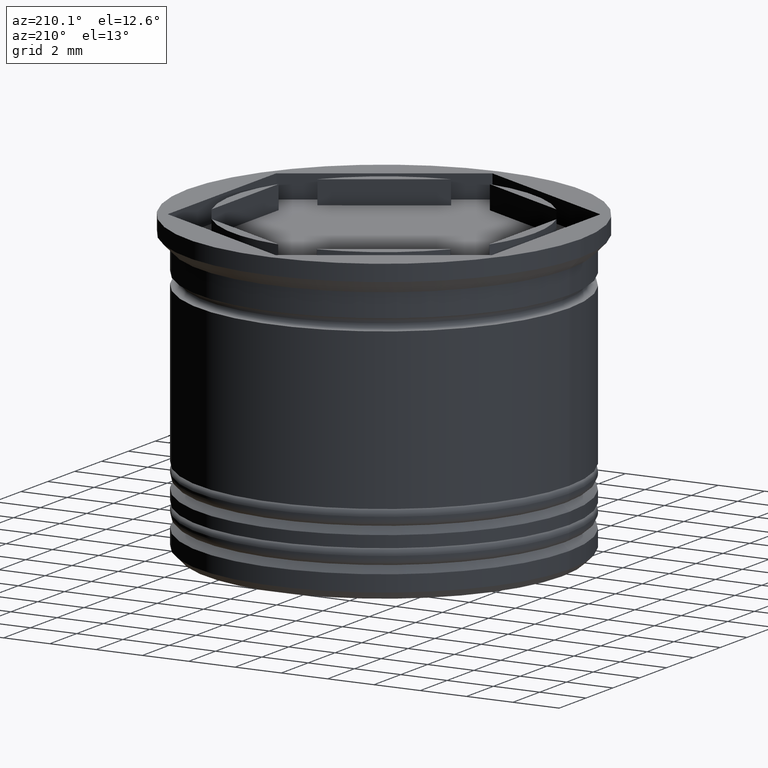
[diagram: clean part render]
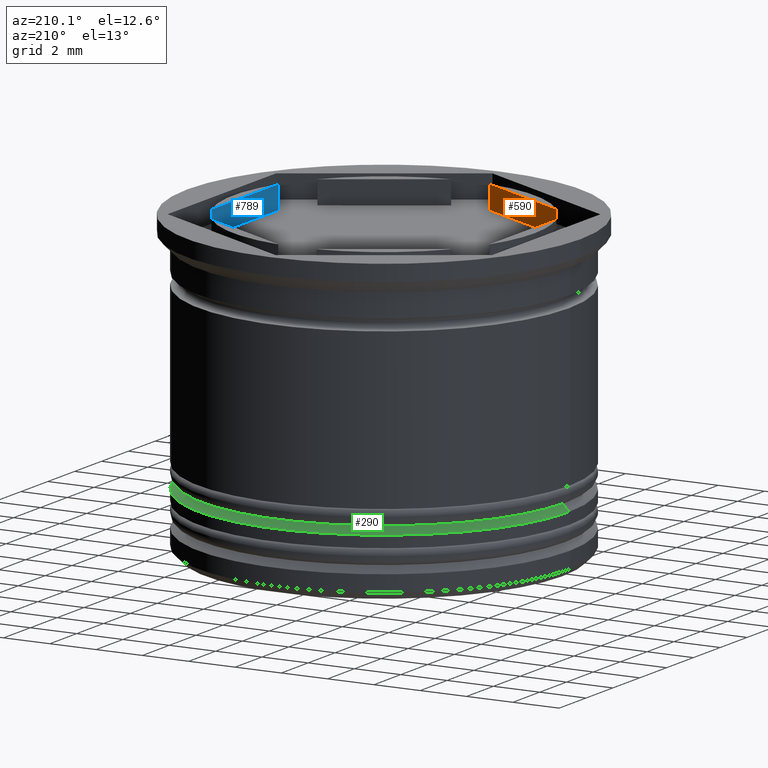
[diagram: same view with three faces highlighted in distinct colors, each labeled with its STEP entity id]
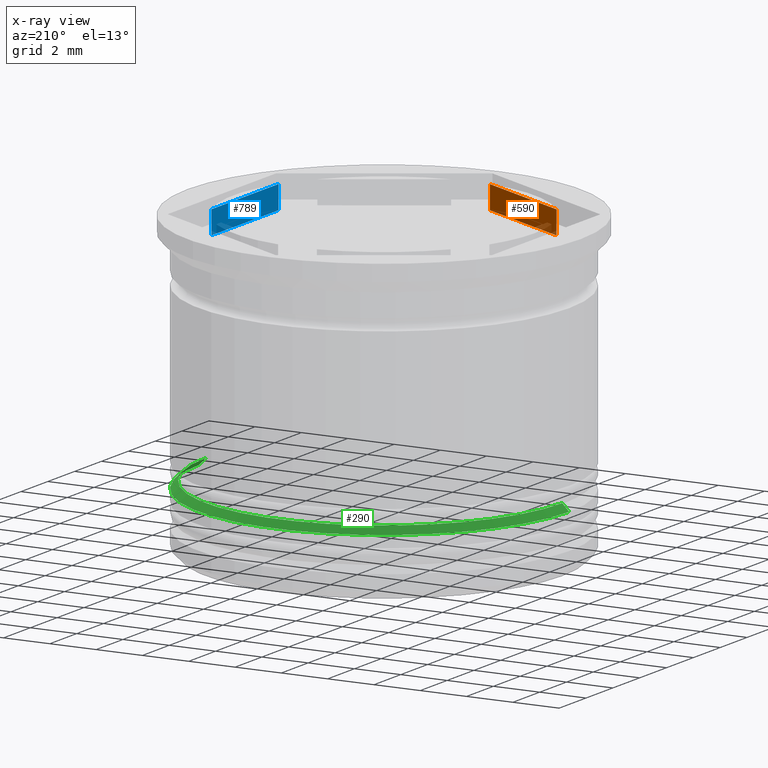
[diagram: x-ray of the same camera — body ghosted, the three highlighted faces saturated]
A machine part, auxiliary view with three faces highlighted in distinct colors.
The next image is the same camera in x-ray (body ghosted, the three faces saturated) — at least one of them is partly hidden behind the body in this view.
Their STEP definitions:

[orange] entity #590 — the highlighted planar face has unit normal (-0.5, -0.866, 0).
#32 = EDGE_CURVE ( 'NONE', #1372, #652, #624, .T. ) ;
#61 = CARTESIAN_POINT ( 'NONE',  ( -5.165063509461102598, -3.946152422706626250, 18.38477631085023134 ) ) ;
#201 = CARTESIAN_POINT ( 'NONE',  ( -6.000000000000000000, -3.464101615137753942, -19.33030277982335932 ) ) ;
#215 = EDGE_CURVE ( 'NONE', #907, #652, #688, .T. ) ;
#226 = CARTESIAN_POINT ( 'NONE',  ( -0.8349364905389008440, -6.446152422706632024, 0.000000000000000000 ) ) ;
#271 = VECTOR ( 'NONE', #1893, 1000.000000000000000 ) ;
#381 = DIRECTION ( 'NONE',  ( -0.000000000000000000, -0.000000000000000000, -1.000000000000000000 ) ) ;
#434 = CARTESIAN_POINT ( 'NONE',  ( -6.000000000000000000, -3.464101615137753942, -1.000000000000000888 ) ) ;
#473 = PLANE ( 'NONE',  #1424 ) ;
#537 = DIRECTION ( 'NONE',  ( 0.8660254037844387076, -0.4999999999999999445, 0.000000000000000000 ) ) ;
#590 = ADVANCED_FACE ( 'NONE', ( #1852 ), #473, .F. ) ;
#595 = LINE ( 'NONE', #434, #1853 ) ;
#624 = LINE ( 'NONE', #1267, #271 ) ;
#652 = VERTEX_POINT ( 'NONE', #226 ) ;
#684 = DIRECTION ( 'NONE',  ( -0.4999999999999999445, -0.8660254037844387076, 0.000000000000000000 ) ) ;
#688 = LINE ( 'NONE', #717, #693 ) ;
#693 = VECTOR ( 'NONE', #537, 999.9999999999998863 ) ;
#717 = CARTESIAN_POINT ( 'NONE',  ( -2.999999999999999112, -5.196152422706632024, 0.000000000000000000 ) ) ;
#740 = CARTESIAN_POINT ( 'NONE',  ( -5.165063509461099045, -3.946152422706631580, -1.000000000000000888 ) ) ;
#907 = VERTEX_POINT ( 'NONE', #1841 ) ;
#951 = DIRECTION ( 'NONE',  ( 0.8660254037844385966, -0.4999999999999998890, 0.000000000000000000 ) ) ;
#981 = ORIENTED_EDGE ( 'NONE', *, *, #32, .F. ) ;
#992 = EDGE_CURVE ( 'NONE', #907, #1340, #1772, .T. ) ;
#1135 = ORIENTED_EDGE ( 'NONE', *, *, #992, .F. ) ;
#1267 = CARTESIAN_POINT ( 'NONE',  ( -0.8349364905388942937, -6.446152422706633800, 18.38477631085023134 ) ) ;
#1284 = EDGE_CURVE ( 'NONE', #1372, #1340, #595, .T. ) ;
#1316 = DIRECTION ( 'NONE',  ( -0.8660254037844387076, 0.4999999999999999445, 0.000000000000000000 ) ) ;
#1340 = VERTEX_POINT ( 'NONE', #740 ) ;
#1372 = VERTEX_POINT ( 'NONE', #1485 ) ;
#1424 = AXIS2_PLACEMENT_3D ( 'NONE', #201, #684, #951 ) ;
#1485 = CARTESIAN_POINT ( 'NONE',  ( -0.8349364905389012881, -6.446152422706633800, -1.000000000000000888 ) ) ;
#1622 = EDGE_LOOP ( 'NONE', ( #1778, #981, #1860, #1135 ) ) ;
#1772 = LINE ( 'NONE', #61, #1829 ) ;
#1778 = ORIENTED_EDGE ( 'NONE', *, *, #215, .T. ) ;
#1829 = VECTOR ( 'NONE', #381, 1000.000000000000000 ) ;
#1841 = CARTESIAN_POINT ( 'NONE',  ( -5.165063509461098157, -3.946152422706629803, 0.000000000000000000 ) ) ;
#1852 = FACE_OUTER_BOUND ( 'NONE', #1622, .T. ) ;
#1853 = VECTOR ( 'NONE', #1316, 999.9999999999998863 ) ;
#1860 = ORIENTED_EDGE ( 'NONE', *, *, #1284, .T. ) ;
#1893 = DIRECTION ( 'NONE',  ( 0.000000000000000000, 0.000000000000000000, 1.000000000000000000 ) ) ;

[blue] entity #789 — the highlighted planar face has unit normal (1, -0, 0).
#119 = CARTESIAN_POINT ( 'NONE',  ( 5.999999999999999112, -2.500000000000003109, -1.000000000000000888 ) ) ;
#144 = ORIENTED_EDGE ( 'NONE', *, *, #1598, .F. ) ;
#167 = VERTEX_POINT ( 'NONE', #1784 ) ;
#217 = LINE ( 'NONE', #1245, #1365 ) ;
#229 = CARTESIAN_POINT ( 'NONE',  ( 6.000000000000000000, -1.502314598737158834E-15, 0.000000000000000000 ) ) ;
#236 = EDGE_CURVE ( 'NONE', #167, #1453, #677, .T. ) ;
#248 = CARTESIAN_POINT ( 'NONE',  ( 5.999999999999999112, -2.500000000000003109, 18.38477631085023134 ) ) ;
#296 = PLANE ( 'NONE',  #1198 ) ;
#317 = FACE_OUTER_BOUND ( 'NONE', #1690, .T. ) ;
#323 = CARTESIAN_POINT ( 'NONE',  ( 6.000000000000000888, 2.500000000000000444, 0.000000000000000000 ) ) ;
#397 = LINE ( 'NONE', #698, #573 ) ;
#401 = LINE ( 'NONE', #248, #969 ) ;
#573 = VECTOR ( 'NONE', #1458, 1000.000000000000000 ) ;
#665 = CARTESIAN_POINT ( 'NONE',  ( 6.000000000000000888, 2.500000000000000444, -1.000000000000000888 ) ) ;
#677 = LINE ( 'NONE', #229, #808 ) ;
#698 = CARTESIAN_POINT ( 'NONE',  ( 5.999999999999999112, -3.464101615137755719, -1.000000000000000888 ) ) ;
#756 = EDGE_CURVE ( 'NONE', #167, #1269, #401, .T. ) ;
#775 = CARTESIAN_POINT ( 'NONE',  ( 5.999999999999999112, -3.464101615137755719, -19.33030277982335932 ) ) ;
#789 = ADVANCED_FACE ( 'NONE', ( #317 ), #296, .F. ) ;
#808 = VECTOR ( 'NONE', #1929, 1000.000000000000000 ) ;
#860 = DIRECTION ( 'NONE',  ( -0.000000000000000000, -0.000000000000000000, -1.000000000000000000 ) ) ;
#924 = DIRECTION ( 'NONE',  ( 2.503857664561931390E-16, 1.000000000000000000, 0.000000000000000000 ) ) ;
#969 = VECTOR ( 'NONE', #860, 1000.000000000000000 ) ;
#1115 = ORIENTED_EDGE ( 'NONE', *, *, #756, .F. ) ;
#1198 = AXIS2_PLACEMENT_3D ( 'NONE', #775, #1216, #924 ) ;
#1216 = DIRECTION ( 'NONE',  ( 1.000000000000000000, -2.503857664561931390E-16, 0.000000000000000000 ) ) ;
#1245 = CARTESIAN_POINT ( 'NONE',  ( 6.000000000000000888, 2.500000000000000444, 18.38477631085023134 ) ) ;
#1269 = VERTEX_POINT ( 'NONE', #119 ) ;
#1365 = VECTOR ( 'NONE', #1589, 1000.000000000000000 ) ;
#1453 = VERTEX_POINT ( 'NONE', #323 ) ;
#1458 = DIRECTION ( 'NONE',  ( -2.503857664561931390E-16, -1.000000000000000000, 0.000000000000000000 ) ) ;
#1578 = ORIENTED_EDGE ( 'NONE', *, *, #236, .T. ) ;
#1589 = DIRECTION ( 'NONE',  ( 0.000000000000000000, 0.000000000000000000, 1.000000000000000000 ) ) ;
#1598 = EDGE_CURVE ( 'NONE', #1983, #1453, #217, .T. ) ;
#1690 = EDGE_LOOP ( 'NONE', ( #1578, #144, #1754, #1115 ) ) ;
#1754 = ORIENTED_EDGE ( 'NONE', *, *, #1866, .T. ) ;
#1784 = CARTESIAN_POINT ( 'NONE',  ( 5.999999999999999112, -2.500000000000003109, 0.000000000000000000 ) ) ;
#1866 = EDGE_CURVE ( 'NONE', #1983, #1269, #397, .T. ) ;
#1929 = DIRECTION ( 'NONE',  ( 2.503857664561931390E-16, 1.000000000000000000, 0.000000000000000000 ) ) ;
#1983 = VERTEX_POINT ( 'NONE', #665 ) ;

[green] entity #290 — the highlighted conical surface has half-angle 45 deg.
#3 = LINE ( 'NONE', #1548, #1725 ) ;
#24 = EDGE_CURVE ( 'NONE', #1229, #52, #3, .T. ) ;
#52 = VERTEX_POINT ( 'NONE', #1070 ) ;
#80 = DIRECTION ( 'NONE',  ( -1.000000000000000000, 0.000000000000000000, 0.000000000000000000 ) ) ;
#156 = DIRECTION ( 'NONE',  ( -0.7071067811865512365, 0.000000000000000000, -0.7071067811865439090 ) ) ;
#223 = VERTEX_POINT ( 'NONE', #1319 ) ;
#258 = FACE_OUTER_BOUND ( 'NONE', #792, .T. ) ;
#281 = EDGE_CURVE ( 'NONE', #52, #1452, #1357, .T. ) ;
#290 = ADVANCED_FACE ( 'NONE', ( #258 ), #1189, .T. ) ;
#305 = CIRCLE ( 'NONE', #534, 7.700000000000000178 ) ;
#496 = AXIS2_PLACEMENT_3D ( 'NONE', #1959, #1036, #869 ) ;
#534 = AXIS2_PLACEMENT_3D ( 'NONE', #1234, #1861, #640 ) ;
#639 = ORIENTED_EDGE ( 'NONE', *, *, #810, .F. ) ;
#640 = DIRECTION ( 'NONE',  ( -1.000000000000000000, 0.000000000000000000, 0.000000000000000000 ) ) ;
#729 = VECTOR ( 'NONE', #1845, 1000.000000000000000 ) ;
#734 = CARTESIAN_POINT ( 'NONE',  ( -7.700000000000000178, 9.429780353434619030E-16, -10.20000000000000817 ) ) ;
#792 = EDGE_LOOP ( 'NONE', ( #639, #1618, #1243, #1240 ) ) ;
#810 = EDGE_CURVE ( 'NONE', #223, #1229, #305, .T. ) ;
#869 = DIRECTION ( 'NONE',  ( -1.000000000000000000, 0.000000000000000000, 0.000000000000000000 ) ) ;
#1036 = DIRECTION ( 'NONE',  ( 0.000000000000000000, 0.000000000000000000, -1.000000000000000000 ) ) ;
#1070 = CARTESIAN_POINT ( 'NONE',  ( -8.000000000000000000, 9.797174393178825657E-16, -10.50000000000000355 ) ) ;
#1085 = CARTESIAN_POINT ( 'NONE',  ( 7.499999999999991118, 9.184850993605138084E-16, -10.00000000000000000 ) ) ;
#1189 = CONICAL_SURFACE ( 'NONE', #496, 7.499999999999991118, 0.7853981633974533860 ) ;
#1217 = LINE ( 'NONE', #1085, #729 ) ;
#1229 = VERTEX_POINT ( 'NONE', #734 ) ;
#1234 = CARTESIAN_POINT ( 'NONE',  ( 0.000000000000000000, 0.000000000000000000, -10.20000000000000817 ) ) ;
#1240 = ORIENTED_EDGE ( 'NONE', *, *, #24, .F. ) ;
#1243 = ORIENTED_EDGE ( 'NONE', *, *, #281, .F. ) ;
#1319 = CARTESIAN_POINT ( 'NONE',  ( 7.700000000000000178, 0.000000000000000000, -10.20000000000000817 ) ) ;
#1357 = CIRCLE ( 'NONE', #1663, 8.000000000000000000 ) ;
#1409 = CARTESIAN_POINT ( 'NONE',  ( 8.000000000000000000, 0.000000000000000000, -10.50000000000000355 ) ) ;
#1429 = EDGE_CURVE ( 'NONE', #223, #1452, #1217, .T. ) ;
#1450 = DIRECTION ( 'NONE',  ( 0.000000000000000000, 0.000000000000000000, -1.000000000000000000 ) ) ;
#1452 = VERTEX_POINT ( 'NONE', #1409 ) ;
#1459 = CARTESIAN_POINT ( 'NONE',  ( 0.000000000000000000, 0.000000000000000000, -10.50000000000000355 ) ) ;
#1548 = CARTESIAN_POINT ( 'NONE',  ( -7.499999999999991118, 0.000000000000000000, -10.00000000000000000 ) ) ;
#1618 = ORIENTED_EDGE ( 'NONE', *, *, #1429, .T. ) ;
#1663 = AXIS2_PLACEMENT_3D ( 'NONE', #1459, #1450, #80 ) ;
#1725 = VECTOR ( 'NONE', #156, 1000.000000000000000 ) ;
#1845 = DIRECTION ( 'NONE',  ( 0.7071067811865512365, 8.659560562354978464E-17, -0.7071067811865439090 ) ) ;
#1861 = DIRECTION ( 'NONE',  ( -0.000000000000000000, -0.000000000000000000, 1.000000000000000000 ) ) ;
#1959 = CARTESIAN_POINT ( 'NONE',  ( 0.000000000000000000, 0.000000000000000000, -10.00000000000000000 ) ) ;